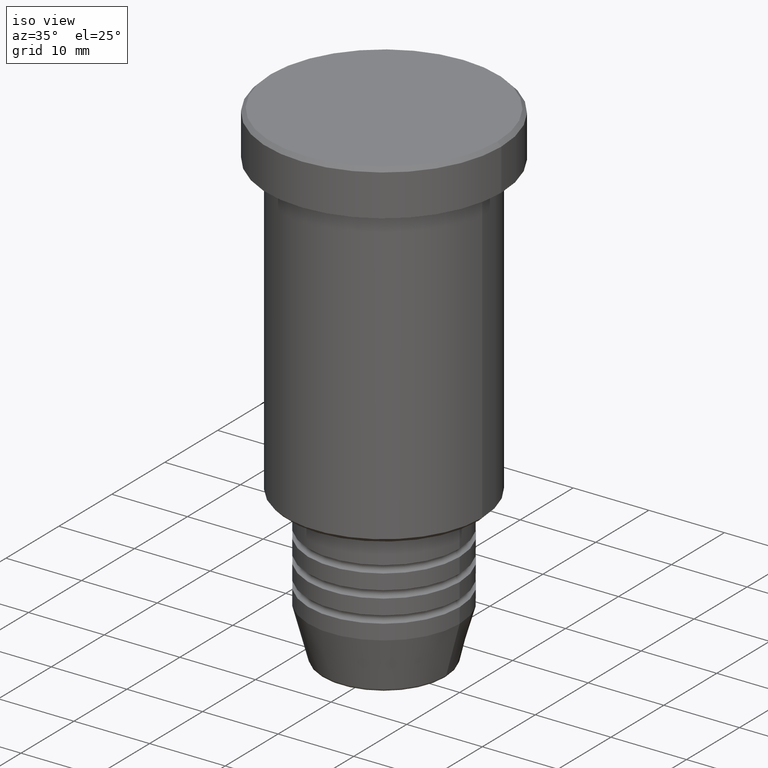
[diagram: clean part render]
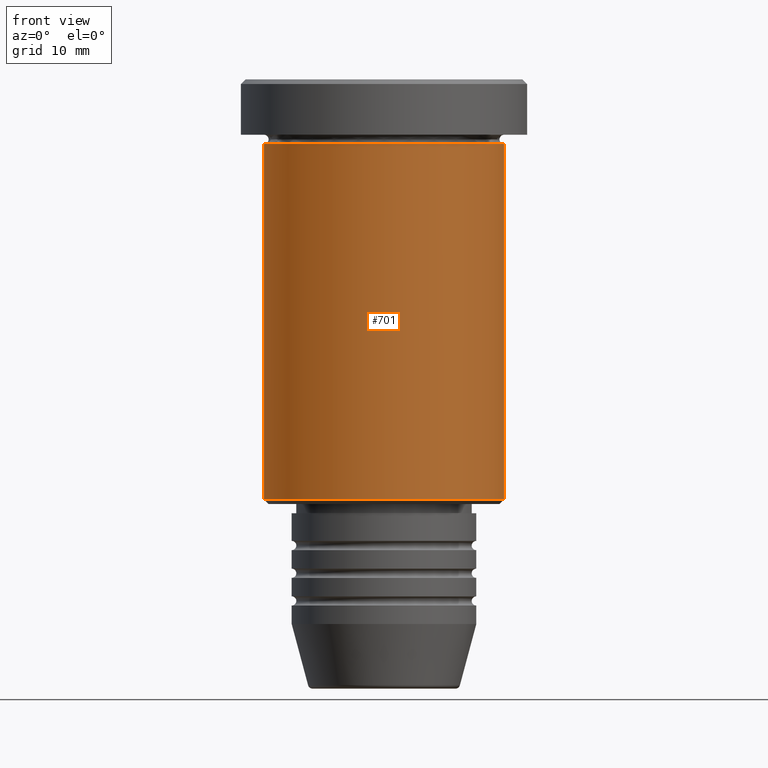
[diagram: tour spotlight — one face highlighted and labeled with its STEP entity id]
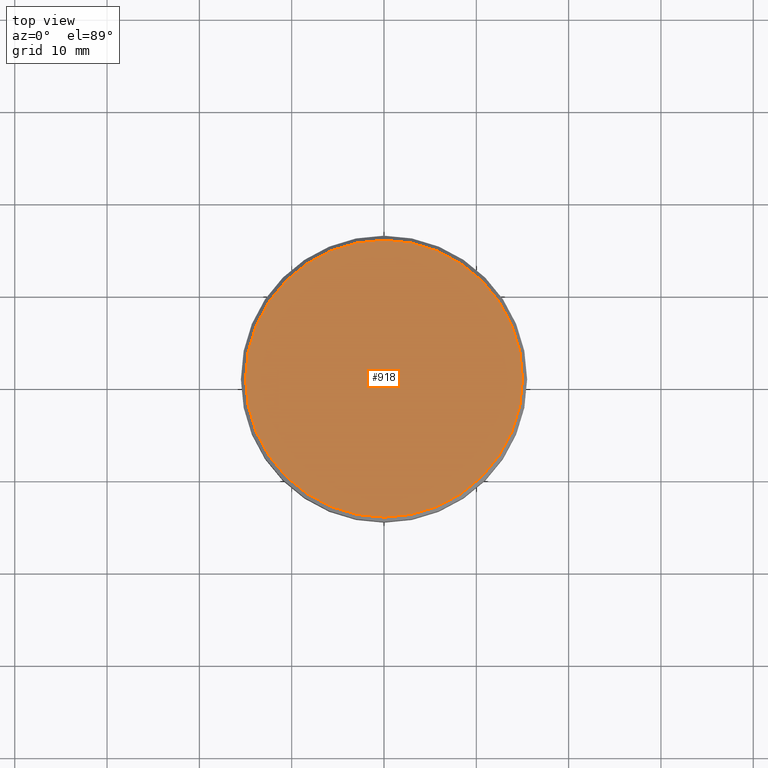
[diagram: tour spotlight — one face highlighted and labeled with its STEP entity id]
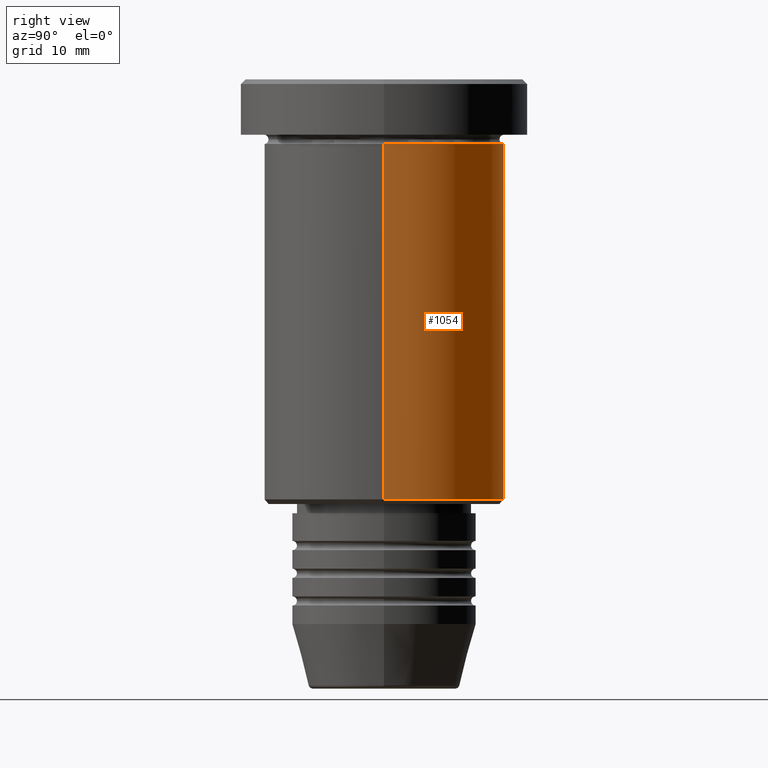
[diagram: tour spotlight — one face highlighted and labeled with its STEP entity id]
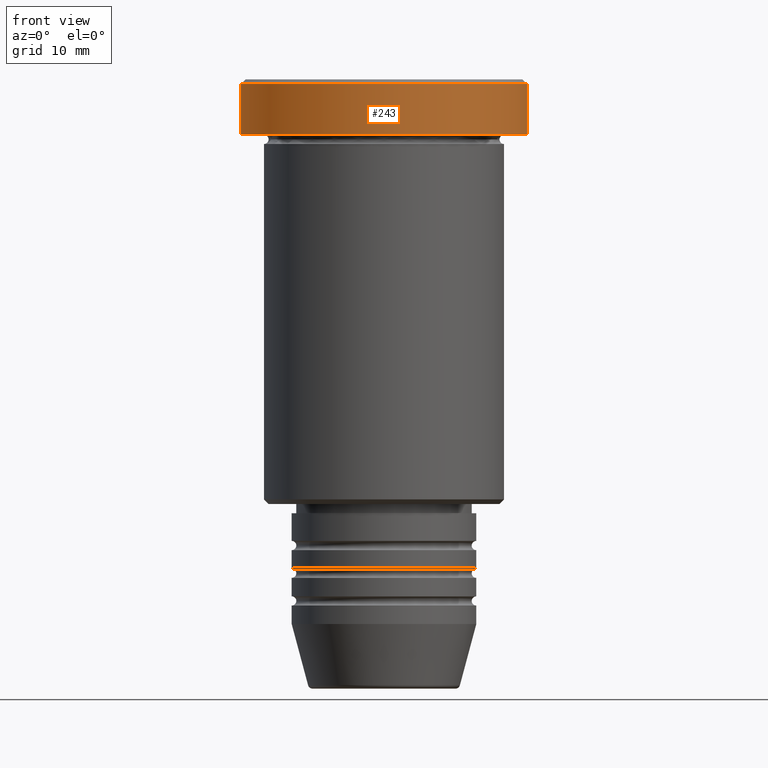
[diagram: tour spotlight — one face highlighted and labeled with its STEP entity id]
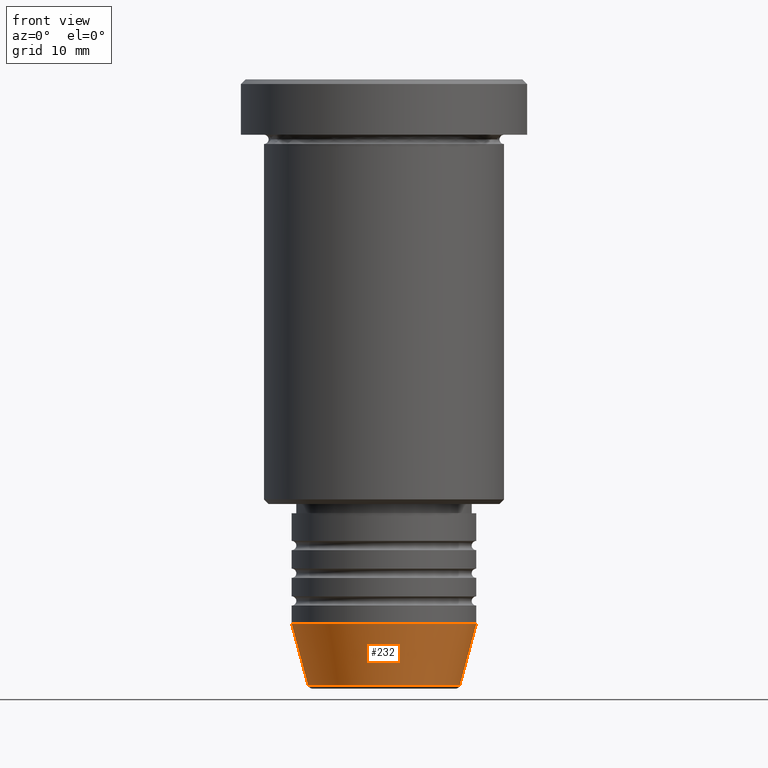
[diagram: tour spotlight — one face highlighted and labeled with its STEP entity id]
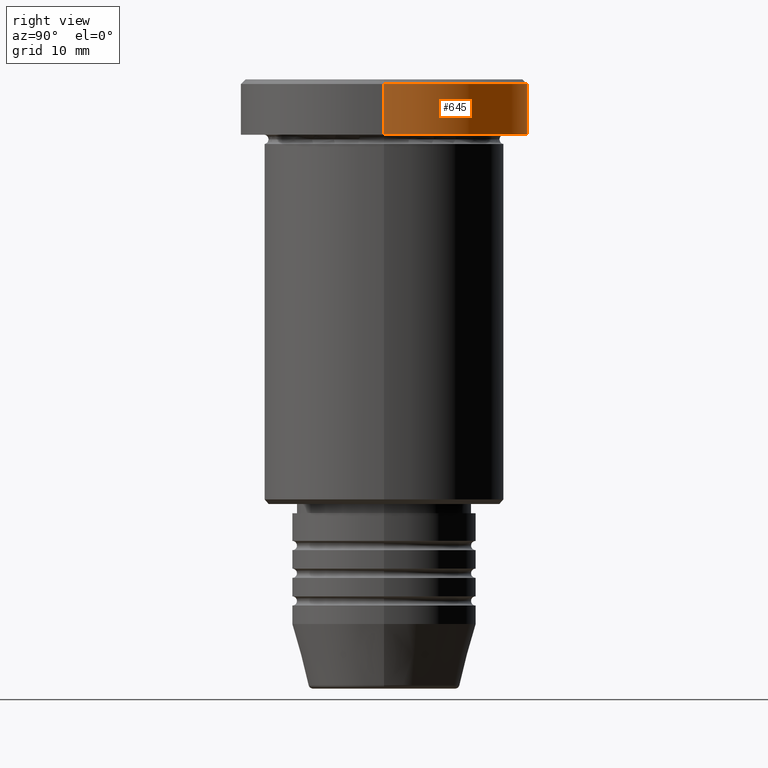
[diagram: tour spotlight — one face highlighted and labeled with its STEP entity id]
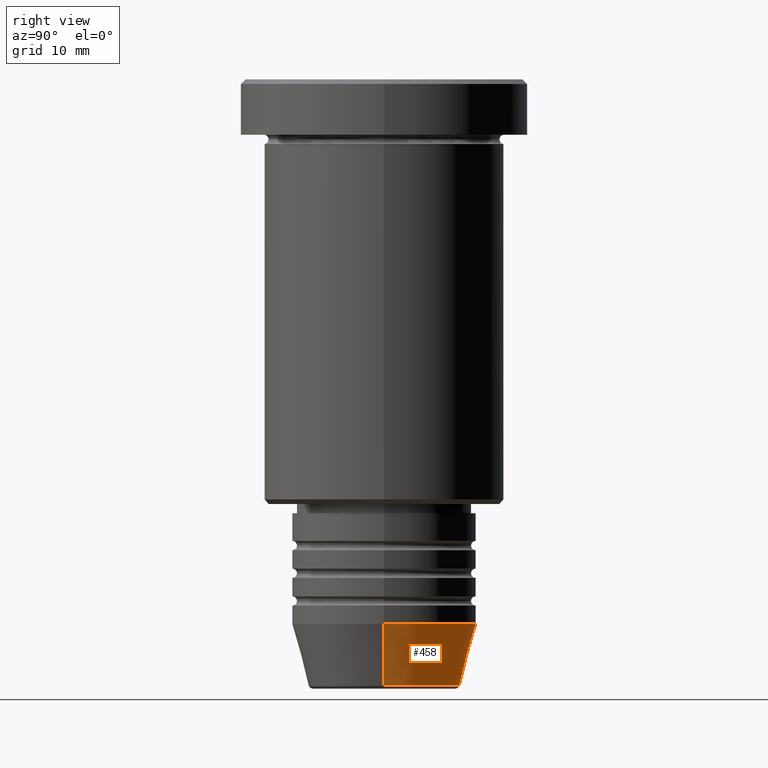
[diagram: tour spotlight — one face highlighted and labeled with its STEP entity id]
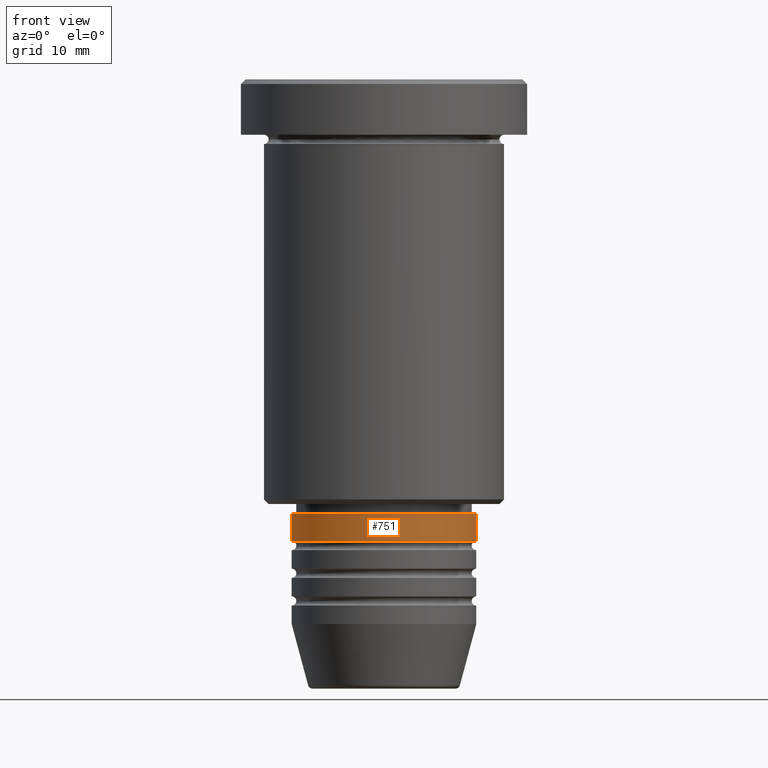
[diagram: tour spotlight — one face highlighted and labeled with its STEP entity id]
A machine part: a face-by-face anatomy tour. The part has 43 B-rep faces; the first image is the clean iso view, then the 8 largest visible faces are spotlighted one at a time (largest first), each with its STEP entity span.

Face 1 — front view, entity #701. In plain terms, the highlighted cylindrical surface (partial cylindrical patch) has radius 13 mm, axis along (-0, -0, 1).
Definition (entity closure, byte-faithful):
#28 = DIRECTION ( 'NONE',  ( 1.000000000000000000, 0.000000000000000000, 0.000000000000000000 ) ) ;
#62 = CARTESIAN_POINT ( 'NONE',  ( 0.000000000000000000, 0.000000000000000000, -6.999999999999995559 ) ) ;
#96 = CARTESIAN_POINT ( 'NONE',  ( 13.00000000000000000, 0.000000000000000000, -6.999999999999995559 ) ) ;
#122 = DIRECTION ( 'NONE',  ( -0.000000000000000000, -0.000000000000000000, 1.000000000000000000 ) ) ;
#150 = VECTOR ( 'NONE', #679, 1000.000000000000000 ) ;
#182 = EDGE_CURVE ( 'NONE', #1121, #1166, #377, .T. ) ;
#203 = ORIENTED_EDGE ( 'NONE', *, *, #182, .T. ) ;
#246 = AXIS2_PLACEMENT_3D ( 'NONE', #502, #969, #702 ) ;
#323 = AXIS2_PLACEMENT_3D ( 'NONE', #941, #468, #28 ) ;
#325 = EDGE_CURVE ( 'NONE', #1094, #699, #961, .T. ) ;
#338 = ORIENTED_EDGE ( 'NONE', *, *, #325, .F. ) ;
#346 = CARTESIAN_POINT ( 'NONE',  ( 13.00000000000000000, 0.000000000000000000, -45.50000000000000000 ) ) ;
#377 = CIRCLE ( 'NONE', #246, 13.00000000000000000 ) ;
#413 = DIRECTION ( 'NONE',  ( -0.000000000000000000, -0.000000000000000000, 1.000000000000000000 ) ) ;
#468 = DIRECTION ( 'NONE',  ( -0.000000000000000000, -0.000000000000000000, 1.000000000000000000 ) ) ;
#472 = LINE ( 'NONE', #568, #150 ) ;
#489 = CYLINDRICAL_SURFACE ( 'NONE', #323, 13.00000000000000000 ) ;
#501 = EDGE_CURVE ( 'NONE', #1166, #699, #878, .T. ) ;
#502 = CARTESIAN_POINT ( 'NONE',  ( 0.000000000000000000, 0.000000000000000000, -45.50000000000000000 ) ) ;
#540 = ORIENTED_EDGE ( 'NONE', *, *, #501, .T. ) ;
#568 = CARTESIAN_POINT ( 'NONE',  ( -13.00000000000000000, 1.592040838891559095E-15, 0.000000000000000000 ) ) ;
#579 = CARTESIAN_POINT ( 'NONE',  ( -13.00000000000000000, 1.592040838891559095E-15, -45.50000000000000000 ) ) ;
#646 = EDGE_LOOP ( 'NONE', ( #1086, #203, #540, #338 ) ) ;
#679 = DIRECTION ( 'NONE',  ( -0.000000000000000000, -0.000000000000000000, 1.000000000000000000 ) ) ;
#699 = VERTEX_POINT ( 'NONE', #96 ) ;
#701 = ADVANCED_FACE ( 'NONE', ( #1111 ), #489, .T. ) ;
#702 = DIRECTION ( 'NONE',  ( -1.000000000000000000, 0.000000000000000000, 0.000000000000000000 ) ) ;
#781 = CARTESIAN_POINT ( 'NONE',  ( 13.00000000000000000, 0.000000000000000000, 0.000000000000000000 ) ) ;
#817 = EDGE_CURVE ( 'NONE', #1121, #1094, #472, .T. ) ;
#842 = AXIS2_PLACEMENT_3D ( 'NONE', #62, #413, #1082 ) ;
#878 = LINE ( 'NONE', #781, #1156 ) ;
#941 = CARTESIAN_POINT ( 'NONE',  ( 0.000000000000000000, 0.000000000000000000, 0.000000000000000000 ) ) ;
#951 = CARTESIAN_POINT ( 'NONE',  ( -13.00000000000000000, 1.592040838891559095E-15, -6.999999999999995559 ) ) ;
#961 = CIRCLE ( 'NONE', #842, 13.00000000000000000 ) ;
#969 = DIRECTION ( 'NONE',  ( -0.000000000000000000, -0.000000000000000000, 1.000000000000000000 ) ) ;
#1082 = DIRECTION ( 'NONE',  ( 1.000000000000000000, 0.000000000000000000, 0.000000000000000000 ) ) ;
#1086 = ORIENTED_EDGE ( 'NONE', *, *, #817, .F. ) ;
#1094 = VERTEX_POINT ( 'NONE', #951 ) ;
#1111 = FACE_OUTER_BOUND ( 'NONE', #646, .T. ) ;
#1121 = VERTEX_POINT ( 'NONE', #579 ) ;
#1156 = VECTOR ( 'NONE', #122, 1000.000000000000000 ) ;
#1166 = VERTEX_POINT ( 'NONE', #346 ) ;

Face 2 — top view, entity #918. In plain terms, the highlighted planar face has unit normal (0, -0, 1).
Definition (entity closure, byte-faithful):
#2 = FACE_OUTER_BOUND ( 'NONE', #992, .T. ) ;
#16 = DIRECTION ( 'NONE',  ( 0.000000000000000000, -0.000000000000000000, 1.000000000000000000 ) ) ;
#29 = AXIS2_PLACEMENT_3D ( 'NONE', #661, #16, #1041 ) ;
#204 = DIRECTION ( 'NONE',  ( 1.000000000000000000, 0.000000000000000000, 0.000000000000000000 ) ) ;
#212 = CARTESIAN_POINT ( 'NONE',  ( 0.000000000000000000, 0.000000000000000000, 0.000000000000000000 ) ) ;
#273 = EDGE_CURVE ( 'NONE', #791, #604, #668, .T. ) ;
#348 = PLANE ( 'NONE',  #29 ) ;
#386 = DIRECTION ( 'NONE',  ( 1.000000000000000000, 0.000000000000000000, 0.000000000000000000 ) ) ;
#397 = DIRECTION ( 'NONE',  ( -0.000000000000000000, -0.000000000000000000, 1.000000000000000000 ) ) ;
#526 = CIRCLE ( 'NONE', #1142, 14.99999999999999289 ) ;
#604 = VERTEX_POINT ( 'NONE', #830 ) ;
#657 = CARTESIAN_POINT ( 'NONE',  ( 14.99999999999999289, 1.867586368699713376E-15, 0.000000000000000000 ) ) ;
#661 = CARTESIAN_POINT ( 'NONE',  ( 0.000000000000000000, 0.000000000000000000, 0.000000000000000000 ) ) ;
#668 = CIRCLE ( 'NONE', #1056, 14.99999999999999289 ) ;
#704 = ORIENTED_EDGE ( 'NONE', *, *, #273, .T. ) ;
#778 = CARTESIAN_POINT ( 'NONE',  ( 0.000000000000000000, 0.000000000000000000, 0.000000000000000000 ) ) ;
#791 = VERTEX_POINT ( 'NONE', #657 ) ;
#830 = CARTESIAN_POINT ( 'NONE',  ( -14.99999999999999289, 0.000000000000000000, 0.000000000000000000 ) ) ;
#918 = ADVANCED_FACE ( 'NONE', ( #2 ), #348, .T. ) ;
#949 = EDGE_CURVE ( 'NONE', #604, #791, #526, .T. ) ;
#992 = EDGE_LOOP ( 'NONE', ( #1087, #704 ) ) ;
#1041 = DIRECTION ( 'NONE',  ( 1.000000000000000000, 0.000000000000000000, 0.000000000000000000 ) ) ;
#1050 = DIRECTION ( 'NONE',  ( -0.000000000000000000, -0.000000000000000000, 1.000000000000000000 ) ) ;
#1056 = AXIS2_PLACEMENT_3D ( 'NONE', #212, #397, #386 ) ;
#1087 = ORIENTED_EDGE ( 'NONE', *, *, #949, .T. ) ;
#1142 = AXIS2_PLACEMENT_3D ( 'NONE', #778, #1050, #204 ) ;

Face 3 — right view, entity #1054. In plain terms, the highlighted cylindrical surface (partial cylindrical patch) has radius 13 mm, axis along (-0, -0, 1).
Definition (entity closure, byte-faithful):
#19 = CARTESIAN_POINT ( 'NONE',  ( 0.000000000000000000, 0.000000000000000000, 0.000000000000000000 ) ) ;
#96 = CARTESIAN_POINT ( 'NONE',  ( 13.00000000000000000, 0.000000000000000000, -6.999999999999995559 ) ) ;
#103 = DIRECTION ( 'NONE',  ( 1.000000000000000000, 0.000000000000000000, 0.000000000000000000 ) ) ;
#108 = AXIS2_PLACEMENT_3D ( 'NONE', #920, #344, #832 ) ;
#122 = DIRECTION ( 'NONE',  ( -0.000000000000000000, -0.000000000000000000, 1.000000000000000000 ) ) ;
#150 = VECTOR ( 'NONE', #679, 1000.000000000000000 ) ;
#169 = DIRECTION ( 'NONE',  ( 1.000000000000000000, 0.000000000000000000, 0.000000000000000000 ) ) ;
#217 = EDGE_CURVE ( 'NONE', #1166, #1121, #707, .T. ) ;
#274 = CYLINDRICAL_SURFACE ( 'NONE', #1017, 13.00000000000000000 ) ;
#344 = DIRECTION ( 'NONE',  ( -0.000000000000000000, -0.000000000000000000, 1.000000000000000000 ) ) ;
#345 = ORIENTED_EDGE ( 'NONE', *, *, #501, .F. ) ;
#346 = CARTESIAN_POINT ( 'NONE',  ( 13.00000000000000000, 0.000000000000000000, -45.50000000000000000 ) ) ;
#472 = LINE ( 'NONE', #568, #150 ) ;
#493 = ORIENTED_EDGE ( 'NONE', *, *, #817, .T. ) ;
#501 = EDGE_CURVE ( 'NONE', #1166, #699, #878, .T. ) ;
#538 = ORIENTED_EDGE ( 'NONE', *, *, #217, .T. ) ;
#562 = EDGE_LOOP ( 'NONE', ( #538, #493, #768, #345 ) ) ;
#568 = CARTESIAN_POINT ( 'NONE',  ( -13.00000000000000000, 1.592040838891559095E-15, 0.000000000000000000 ) ) ;
#579 = CARTESIAN_POINT ( 'NONE',  ( -13.00000000000000000, 1.592040838891559095E-15, -45.50000000000000000 ) ) ;
#631 = AXIS2_PLACEMENT_3D ( 'NONE', #1161, #719, #169 ) ;
#679 = DIRECTION ( 'NONE',  ( -0.000000000000000000, -0.000000000000000000, 1.000000000000000000 ) ) ;
#699 = VERTEX_POINT ( 'NONE', #96 ) ;
#707 = CIRCLE ( 'NONE', #108, 13.00000000000000000 ) ;
#719 = DIRECTION ( 'NONE',  ( -0.000000000000000000, -0.000000000000000000, 1.000000000000000000 ) ) ;
#768 = ORIENTED_EDGE ( 'NONE', *, *, #957, .F. ) ;
#781 = CARTESIAN_POINT ( 'NONE',  ( 13.00000000000000000, 0.000000000000000000, 0.000000000000000000 ) ) ;
#817 = EDGE_CURVE ( 'NONE', #1121, #1094, #472, .T. ) ;
#832 = DIRECTION ( 'NONE',  ( -1.000000000000000000, 0.000000000000000000, 0.000000000000000000 ) ) ;
#847 = CIRCLE ( 'NONE', #631, 13.00000000000000000 ) ;
#878 = LINE ( 'NONE', #781, #1156 ) ;
#920 = CARTESIAN_POINT ( 'NONE',  ( 0.000000000000000000, 0.000000000000000000, -45.50000000000000000 ) ) ;
#951 = CARTESIAN_POINT ( 'NONE',  ( -13.00000000000000000, 1.592040838891559095E-15, -6.999999999999995559 ) ) ;
#957 = EDGE_CURVE ( 'NONE', #699, #1094, #847, .T. ) ;
#1017 = AXIS2_PLACEMENT_3D ( 'NONE', #19, #1136, #103 ) ;
#1054 = ADVANCED_FACE ( 'NONE', ( #1160 ), #274, .T. ) ;
#1094 = VERTEX_POINT ( 'NONE', #951 ) ;
#1121 = VERTEX_POINT ( 'NONE', #579 ) ;
#1136 = DIRECTION ( 'NONE',  ( -0.000000000000000000, -0.000000000000000000, 1.000000000000000000 ) ) ;
#1156 = VECTOR ( 'NONE', #122, 1000.000000000000000 ) ;
#1160 = FACE_OUTER_BOUND ( 'NONE', #562, .T. ) ;
#1161 = CARTESIAN_POINT ( 'NONE',  ( 0.000000000000000000, 0.000000000000000000, -6.999999999999995559 ) ) ;
#1166 = VERTEX_POINT ( 'NONE', #346 ) ;

Face 4 — front view, entity #243. In plain terms, the highlighted cylindrical surface (partial cylindrical patch) has radius 15.5 mm, axis along (-0, -0, 1).
Definition (entity closure, byte-faithful):
#69 = CARTESIAN_POINT ( 'NONE',  ( -15.50000000000000000, 1.898202538678397557E-15, -0.5000000000000057732 ) ) ;
#92 = EDGE_CURVE ( 'NONE', #582, #912, #681, .T. ) ;
#105 = CARTESIAN_POINT ( 'NONE',  ( 15.50000000000000000, 0.000000000000000000, 0.000000000000000000 ) ) ;
#191 = CARTESIAN_POINT ( 'NONE',  ( 0.000000000000000000, 0.000000000000000000, -0.5000000000000057732 ) ) ;
#194 = VECTOR ( 'NONE', #1028, 1000.000000000000000 ) ;
#207 = CYLINDRICAL_SURFACE ( 'NONE', #1119, 15.50000000000000000 ) ;
#234 = CARTESIAN_POINT ( 'NONE',  ( 15.50000000000000000, 0.000000000000000000, -0.5000000000000057732 ) ) ;
#243 = ADVANCED_FACE ( 'NONE', ( #498 ), #207, .T. ) ;
#256 = ORIENTED_EDGE ( 'NONE', *, *, #933, .T. ) ;
#336 = VERTEX_POINT ( 'NONE', #234 ) ;
#350 = LINE ( 'NONE', #105, #1038 ) ;
#395 = DIRECTION ( 'NONE',  ( -0.000000000000000000, -0.000000000000000000, 1.000000000000000000 ) ) ;
#440 = AXIS2_PLACEMENT_3D ( 'NONE', #191, #1115, #947 ) ;
#474 = DIRECTION ( 'NONE',  ( -0.000000000000000000, -0.000000000000000000, 1.000000000000000000 ) ) ;
#498 = FACE_OUTER_BOUND ( 'NONE', #500, .T. ) ;
#500 = EDGE_LOOP ( 'NONE', ( #1178, #665, #256, #1159 ) ) ;
#533 = EDGE_CURVE ( 'NONE', #582, #819, #895, .T. ) ;
#582 = VERTEX_POINT ( 'NONE', #1020 ) ;
#583 = CARTESIAN_POINT ( 'NONE',  ( -15.50000000000000000, 1.898202538678397557E-15, 0.000000000000000000 ) ) ;
#653 = CARTESIAN_POINT ( 'NONE',  ( 15.50000000000000000, 0.000000000000000000, -5.999999999999995559 ) ) ;
#665 = ORIENTED_EDGE ( 'NONE', *, *, #533, .T. ) ;
#681 = LINE ( 'NONE', #583, #194 ) ;
#685 = EDGE_CURVE ( 'NONE', #336, #912, #804, .T. ) ;
#703 = CARTESIAN_POINT ( 'NONE',  ( 0.000000000000000000, 0.000000000000000000, -5.999999999999995559 ) ) ;
#758 = CARTESIAN_POINT ( 'NONE',  ( 0.000000000000000000, 0.000000000000000000, 0.000000000000000000 ) ) ;
#786 = DIRECTION ( 'NONE',  ( 1.000000000000000000, 0.000000000000000000, 0.000000000000000000 ) ) ;
#804 = CIRCLE ( 'NONE', #440, 15.50000000000000000 ) ;
#819 = VERTEX_POINT ( 'NONE', #653 ) ;
#895 = CIRCLE ( 'NONE', #1141, 15.50000000000000000 ) ;
#912 = VERTEX_POINT ( 'NONE', #69 ) ;
#933 = EDGE_CURVE ( 'NONE', #819, #336, #350, .T. ) ;
#945 = DIRECTION ( 'NONE',  ( -0.000000000000000000, -0.000000000000000000, 1.000000000000000000 ) ) ;
#947 = DIRECTION ( 'NONE',  ( 1.000000000000000000, 0.000000000000000000, 0.000000000000000000 ) ) ;
#1020 = CARTESIAN_POINT ( 'NONE',  ( -15.50000000000000000, 1.898202538678397557E-15, -5.999999999999995559 ) ) ;
#1028 = DIRECTION ( 'NONE',  ( -0.000000000000000000, -0.000000000000000000, 1.000000000000000000 ) ) ;
#1038 = VECTOR ( 'NONE', #474, 1000.000000000000000 ) ;
#1053 = DIRECTION ( 'NONE',  ( 1.000000000000000000, 0.000000000000000000, 0.000000000000000000 ) ) ;
#1115 = DIRECTION ( 'NONE',  ( 0.000000000000000000, 0.000000000000000000, -1.000000000000000000 ) ) ;
#1119 = AXIS2_PLACEMENT_3D ( 'NONE', #758, #945, #1053 ) ;
#1141 = AXIS2_PLACEMENT_3D ( 'NONE', #703, #395, #786 ) ;
#1159 = ORIENTED_EDGE ( 'NONE', *, *, #685, .T. ) ;
#1178 = ORIENTED_EDGE ( 'NONE', *, *, #92, .F. ) ;

Face 5 — front view, entity #232. In plain terms, the highlighted conical surface has half-angle 15 deg.
Definition (entity closure, byte-faithful):
#100 = CARTESIAN_POINT ( 'NONE',  ( 0.000000000000000000, 0.000000000000000000, -59.00000000000000000 ) ) ;
#131 = AXIS2_PLACEMENT_3D ( 'NONE', #100, #596, #972 ) ;
#163 = ORIENTED_EDGE ( 'NONE', *, *, #637, .T. ) ;
#188 = VECTOR ( 'NONE', #215, 1000.000000000000000 ) ;
#199 = CARTESIAN_POINT ( 'NONE',  ( 10.00000000000000000, 0.000000000000000000, -59.00000000000000000 ) ) ;
#215 = DIRECTION ( 'NONE',  ( -0.2588190451025213501, 3.169619151431772337E-17, 0.9659258262890680902 ) ) ;
#232 = ADVANCED_FACE ( 'NONE', ( #686 ), #908, .T. ) ;
#282 = EDGE_CURVE ( 'NONE', #1044, #424, #692, .T. ) ;
#294 = EDGE_CURVE ( 'NONE', #636, #1092, #1033, .T. ) ;
#298 = DIRECTION ( 'NONE',  ( 1.000000000000000000, 0.000000000000000000, 0.000000000000000000 ) ) ;
#333 = AXIS2_PLACEMENT_3D ( 'NONE', #966, #573, #298 ) ;
#354 = VECTOR ( 'NONE', #659, 1000.000000000000000 ) ;
#378 = DIRECTION ( 'NONE',  ( -0.000000000000000000, -0.000000000000000000, 1.000000000000000000 ) ) ;
#408 = CARTESIAN_POINT ( 'NONE',  ( -10.00000000000000000, 1.224646799147353256E-15, -59.00000000000000000 ) ) ;
#419 = LINE ( 'NONE', #408, #188 ) ;
#424 = VERTEX_POINT ( 'NONE', #1052 ) ;
#467 = CARTESIAN_POINT ( 'NONE',  ( 8.223655072137187716, 0.000000000000000000, -65.62940952255127058 ) ) ;
#537 = EDGE_LOOP ( 'NONE', ( #1181, #931, #163, #680 ) ) ;
#573 = DIRECTION ( 'NONE',  ( -0.000000000000000000, -0.000000000000000000, 1.000000000000000000 ) ) ;
#584 = CARTESIAN_POINT ( 'NONE',  ( -8.223655072137187716, 1.115877042642911856E-15, -65.62940952255127058 ) ) ;
#596 = DIRECTION ( 'NONE',  ( -0.000000000000000000, -0.000000000000000000, 1.000000000000000000 ) ) ;
#636 = VERTEX_POINT ( 'NONE', #584 ) ;
#637 = EDGE_CURVE ( 'NONE', #1092, #424, #1029, .T. ) ;
#659 = DIRECTION ( 'NONE',  ( 0.2588190451025213501, 0.000000000000000000, 0.9659258262890680902 ) ) ;
#680 = ORIENTED_EDGE ( 'NONE', *, *, #282, .F. ) ;
#686 = FACE_OUTER_BOUND ( 'NONE', #537, .T. ) ;
#692 = CIRCLE ( 'NONE', #131, 10.00000000000000000 ) ;
#745 = EDGE_CURVE ( 'NONE', #636, #1044, #419, .T. ) ;
#789 = DIRECTION ( 'NONE',  ( 1.000000000000000000, 0.000000000000000000, 0.000000000000000000 ) ) ;
#807 = CARTESIAN_POINT ( 'NONE',  ( -10.00000000000000000, 1.224646799147353256E-15, -59.00000000000000000 ) ) ;
#860 = CARTESIAN_POINT ( 'NONE',  ( 0.000000000000000000, 0.000000000000000000, -65.62940952255127058 ) ) ;
#908 = CONICAL_SURFACE ( 'NONE', #333, 10.00000000000000000, 0.2617993877991500740 ) ;
#926 = AXIS2_PLACEMENT_3D ( 'NONE', #860, #378, #789 ) ;
#931 = ORIENTED_EDGE ( 'NONE', *, *, #294, .T. ) ;
#966 = CARTESIAN_POINT ( 'NONE',  ( 0.000000000000000000, 0.000000000000000000, -59.00000000000000000 ) ) ;
#972 = DIRECTION ( 'NONE',  ( 1.000000000000000000, 0.000000000000000000, 0.000000000000000000 ) ) ;
#1029 = LINE ( 'NONE', #199, #354 ) ;
#1033 = CIRCLE ( 'NONE', #926, 8.223655072137187716 ) ;
#1044 = VERTEX_POINT ( 'NONE', #807 ) ;
#1052 = CARTESIAN_POINT ( 'NONE',  ( 10.00000000000000000, 0.000000000000000000, -59.00000000000000000 ) ) ;
#1092 = VERTEX_POINT ( 'NONE', #467 ) ;
#1181 = ORIENTED_EDGE ( 'NONE', *, *, #745, .F. ) ;

Face 6 — right view, entity #645. In plain terms, the highlighted cylindrical surface (partial cylindrical patch) has radius 15.5 mm, axis along (-0, -0, 1).
Definition (entity closure, byte-faithful):
#14 = DIRECTION ( 'NONE',  ( -0.000000000000000000, -0.000000000000000000, 1.000000000000000000 ) ) ;
#69 = CARTESIAN_POINT ( 'NONE',  ( -15.50000000000000000, 1.898202538678397557E-15, -0.5000000000000057732 ) ) ;
#74 = AXIS2_PLACEMENT_3D ( 'NONE', #442, #831, #838 ) ;
#92 = EDGE_CURVE ( 'NONE', #582, #912, #681, .T. ) ;
#105 = CARTESIAN_POINT ( 'NONE',  ( 15.50000000000000000, 0.000000000000000000, 0.000000000000000000 ) ) ;
#194 = VECTOR ( 'NONE', #1028, 1000.000000000000000 ) ;
#234 = CARTESIAN_POINT ( 'NONE',  ( 15.50000000000000000, 0.000000000000000000, -0.5000000000000057732 ) ) ;
#279 = CARTESIAN_POINT ( 'NONE',  ( 0.000000000000000000, 0.000000000000000000, -0.5000000000000057732 ) ) ;
#309 = CIRCLE ( 'NONE', #74, 15.50000000000000000 ) ;
#332 = ORIENTED_EDGE ( 'NONE', *, *, #92, .T. ) ;
#336 = VERTEX_POINT ( 'NONE', #234 ) ;
#350 = LINE ( 'NONE', #105, #1038 ) ;
#417 = EDGE_CURVE ( 'NONE', #912, #336, #1104, .T. ) ;
#442 = CARTESIAN_POINT ( 'NONE',  ( 0.000000000000000000, 0.000000000000000000, -5.999999999999995559 ) ) ;
#474 = DIRECTION ( 'NONE',  ( -0.000000000000000000, -0.000000000000000000, 1.000000000000000000 ) ) ;
#475 = FACE_OUTER_BOUND ( 'NONE', #799, .T. ) ;
#563 = DIRECTION ( 'NONE',  ( 1.000000000000000000, 0.000000000000000000, 0.000000000000000000 ) ) ;
#582 = VERTEX_POINT ( 'NONE', #1020 ) ;
#583 = CARTESIAN_POINT ( 'NONE',  ( -15.50000000000000000, 1.898202538678397557E-15, 0.000000000000000000 ) ) ;
#587 = AXIS2_PLACEMENT_3D ( 'NONE', #279, #676, #948 ) ;
#645 = ADVANCED_FACE ( 'NONE', ( #475 ), #779, .T. ) ;
#652 = ORIENTED_EDGE ( 'NONE', *, *, #984, .T. ) ;
#653 = CARTESIAN_POINT ( 'NONE',  ( 15.50000000000000000, 0.000000000000000000, -5.999999999999995559 ) ) ;
#667 = CARTESIAN_POINT ( 'NONE',  ( 0.000000000000000000, 0.000000000000000000, 0.000000000000000000 ) ) ;
#676 = DIRECTION ( 'NONE',  ( 0.000000000000000000, 0.000000000000000000, -1.000000000000000000 ) ) ;
#681 = LINE ( 'NONE', #583, #194 ) ;
#693 = AXIS2_PLACEMENT_3D ( 'NONE', #667, #14, #563 ) ;
#779 = CYLINDRICAL_SURFACE ( 'NONE', #693, 15.50000000000000000 ) ;
#799 = EDGE_LOOP ( 'NONE', ( #652, #332, #921, #1095 ) ) ;
#819 = VERTEX_POINT ( 'NONE', #653 ) ;
#831 = DIRECTION ( 'NONE',  ( -0.000000000000000000, -0.000000000000000000, 1.000000000000000000 ) ) ;
#838 = DIRECTION ( 'NONE',  ( 1.000000000000000000, 0.000000000000000000, 0.000000000000000000 ) ) ;
#912 = VERTEX_POINT ( 'NONE', #69 ) ;
#921 = ORIENTED_EDGE ( 'NONE', *, *, #417, .T. ) ;
#933 = EDGE_CURVE ( 'NONE', #819, #336, #350, .T. ) ;
#948 = DIRECTION ( 'NONE',  ( 1.000000000000000000, 0.000000000000000000, 0.000000000000000000 ) ) ;
#984 = EDGE_CURVE ( 'NONE', #819, #582, #309, .T. ) ;
#1020 = CARTESIAN_POINT ( 'NONE',  ( -15.50000000000000000, 1.898202538678397557E-15, -5.999999999999995559 ) ) ;
#1028 = DIRECTION ( 'NONE',  ( -0.000000000000000000, -0.000000000000000000, 1.000000000000000000 ) ) ;
#1038 = VECTOR ( 'NONE', #474, 1000.000000000000000 ) ;
#1095 = ORIENTED_EDGE ( 'NONE', *, *, #933, .F. ) ;
#1104 = CIRCLE ( 'NONE', #587, 15.50000000000000000 ) ;

Face 7 — right view, entity #458. In plain terms, the highlighted conical surface has half-angle 15 deg.
Definition (entity closure, byte-faithful):
#49 = CIRCLE ( 'NONE', #1090, 8.223655072137187716 ) ;
#162 = EDGE_CURVE ( 'NONE', #424, #1044, #478, .T. ) ;
#188 = VECTOR ( 'NONE', #215, 1000.000000000000000 ) ;
#199 = CARTESIAN_POINT ( 'NONE',  ( 10.00000000000000000, 0.000000000000000000, -59.00000000000000000 ) ) ;
#208 = AXIS2_PLACEMENT_3D ( 'NONE', #1140, #1057, #897 ) ;
#215 = DIRECTION ( 'NONE',  ( -0.2588190451025213501, 3.169619151431772337E-17, 0.9659258262890680902 ) ) ;
#230 = CONICAL_SURFACE ( 'NONE', #928, 10.00000000000000000, 0.2617993877991500740 ) ;
#297 = FACE_OUTER_BOUND ( 'NONE', #826, .T. ) ;
#300 = CARTESIAN_POINT ( 'NONE',  ( 0.000000000000000000, 0.000000000000000000, -65.62940952255127058 ) ) ;
#308 = ORIENTED_EDGE ( 'NONE', *, *, #162, .F. ) ;
#312 = ORIENTED_EDGE ( 'NONE', *, *, #735, .T. ) ;
#354 = VECTOR ( 'NONE', #659, 1000.000000000000000 ) ;
#408 = CARTESIAN_POINT ( 'NONE',  ( -10.00000000000000000, 1.224646799147353256E-15, -59.00000000000000000 ) ) ;
#419 = LINE ( 'NONE', #408, #188 ) ;
#424 = VERTEX_POINT ( 'NONE', #1052 ) ;
#431 = ORIENTED_EDGE ( 'NONE', *, *, #745, .T. ) ;
#458 = ADVANCED_FACE ( 'NONE', ( #297 ), #230, .T. ) ;
#462 = DIRECTION ( 'NONE',  ( 1.000000000000000000, 0.000000000000000000, 0.000000000000000000 ) ) ;
#467 = CARTESIAN_POINT ( 'NONE',  ( 8.223655072137187716, 0.000000000000000000, -65.62940952255127058 ) ) ;
#478 = CIRCLE ( 'NONE', #208, 10.00000000000000000 ) ;
#577 = CARTESIAN_POINT ( 'NONE',  ( 0.000000000000000000, 0.000000000000000000, -59.00000000000000000 ) ) ;
#584 = CARTESIAN_POINT ( 'NONE',  ( -8.223655072137187716, 1.115877042642911856E-15, -65.62940952255127058 ) ) ;
#636 = VERTEX_POINT ( 'NONE', #584 ) ;
#637 = EDGE_CURVE ( 'NONE', #1092, #424, #1029, .T. ) ;
#659 = DIRECTION ( 'NONE',  ( 0.2588190451025213501, 0.000000000000000000, 0.9659258262890680902 ) ) ;
#684 = DIRECTION ( 'NONE',  ( 1.000000000000000000, 0.000000000000000000, 0.000000000000000000 ) ) ;
#735 = EDGE_CURVE ( 'NONE', #1092, #636, #49, .T. ) ;
#745 = EDGE_CURVE ( 'NONE', #636, #1044, #419, .T. ) ;
#807 = CARTESIAN_POINT ( 'NONE',  ( -10.00000000000000000, 1.224646799147353256E-15, -59.00000000000000000 ) ) ;
#826 = EDGE_LOOP ( 'NONE', ( #312, #431, #308, #1144 ) ) ;
#897 = DIRECTION ( 'NONE',  ( 1.000000000000000000, 0.000000000000000000, 0.000000000000000000 ) ) ;
#928 = AXIS2_PLACEMENT_3D ( 'NONE', #577, #1117, #684 ) ;
#1029 = LINE ( 'NONE', #199, #354 ) ;
#1044 = VERTEX_POINT ( 'NONE', #807 ) ;
#1052 = CARTESIAN_POINT ( 'NONE',  ( 10.00000000000000000, 0.000000000000000000, -59.00000000000000000 ) ) ;
#1057 = DIRECTION ( 'NONE',  ( -0.000000000000000000, -0.000000000000000000, 1.000000000000000000 ) ) ;
#1058 = DIRECTION ( 'NONE',  ( -0.000000000000000000, -0.000000000000000000, 1.000000000000000000 ) ) ;
#1090 = AXIS2_PLACEMENT_3D ( 'NONE', #300, #1058, #462 ) ;
#1092 = VERTEX_POINT ( 'NONE', #467 ) ;
#1117 = DIRECTION ( 'NONE',  ( -0.000000000000000000, -0.000000000000000000, 1.000000000000000000 ) ) ;
#1140 = CARTESIAN_POINT ( 'NONE',  ( 0.000000000000000000, 0.000000000000000000, -59.00000000000000000 ) ) ;
#1144 = ORIENTED_EDGE ( 'NONE', *, *, #637, .F. ) ;

Face 8 — front view, entity #751. In plain terms, the highlighted cylindrical surface (partial cylindrical patch) has radius 10 mm, axis along (-0, -0, 1).
Definition (entity closure, byte-faithful):
#15 = CARTESIAN_POINT ( 'NONE',  ( 0.000000000000000000, 0.000000000000000000, -47.00000000000000000 ) ) ;
#20 = CARTESIAN_POINT ( 'NONE',  ( 0.000000000000000000, 0.000000000000000000, -49.99999999999997158 ) ) ;
#75 = EDGE_CURVE ( 'NONE', #632, #227, #385, .T. ) ;
#167 = CIRCLE ( 'NONE', #269, 10.00000000000000000 ) ;
#202 = LINE ( 'NONE', #1108, #1077 ) ;
#227 = VERTEX_POINT ( 'NONE', #491 ) ;
#237 = ORIENTED_EDGE ( 'NONE', *, *, #75, .F. ) ;
#269 = AXIS2_PLACEMENT_3D ( 'NONE', #20, #379, #1106 ) ;
#303 = VECTOR ( 'NONE', #520, 1000.000000000000000 ) ;
#322 = CARTESIAN_POINT ( 'NONE',  ( -10.00000000000000000, 1.224646799147353256E-15, -49.99999999999997158 ) ) ;
#379 = DIRECTION ( 'NONE',  ( -0.000000000000000000, -0.000000000000000000, 1.000000000000000000 ) ) ;
#385 = CIRCLE ( 'NONE', #1149, 10.00000000000000000 ) ;
#402 = AXIS2_PLACEMENT_3D ( 'NONE', #913, #1001, #436 ) ;
#403 = FACE_OUTER_BOUND ( 'NONE', #967, .T. ) ;
#436 = DIRECTION ( 'NONE',  ( 1.000000000000000000, 0.000000000000000000, 0.000000000000000000 ) ) ;
#482 = LINE ( 'NONE', #795, #303 ) ;
#491 = CARTESIAN_POINT ( 'NONE',  ( 10.00000000000000000, 0.000000000000000000, -47.00000000000000000 ) ) ;
#520 = DIRECTION ( 'NONE',  ( -0.000000000000000000, -0.000000000000000000, 1.000000000000000000 ) ) ;
#572 = DIRECTION ( 'NONE',  ( -0.000000000000000000, -0.000000000000000000, 1.000000000000000000 ) ) ;
#632 = VERTEX_POINT ( 'NONE', #857 ) ;
#724 = VERTEX_POINT ( 'NONE', #761 ) ;
#751 = ADVANCED_FACE ( 'NONE', ( #403 ), #793, .T. ) ;
#761 = CARTESIAN_POINT ( 'NONE',  ( 10.00000000000000000, 0.000000000000000000, -49.99999999999997158 ) ) ;
#793 = CYLINDRICAL_SURFACE ( 'NONE', #402, 10.00000000000000000 ) ;
#795 = CARTESIAN_POINT ( 'NONE',  ( 10.00000000000000000, 0.000000000000000000, 0.000000000000000000 ) ) ;
#824 = EDGE_CURVE ( 'NONE', #1072, #632, #202, .T. ) ;
#857 = CARTESIAN_POINT ( 'NONE',  ( -10.00000000000000000, 1.224646799147353256E-15, -47.00000000000000000 ) ) ;
#899 = ORIENTED_EDGE ( 'NONE', *, *, #1128, .T. ) ;
#913 = CARTESIAN_POINT ( 'NONE',  ( 0.000000000000000000, 0.000000000000000000, 0.000000000000000000 ) ) ;
#929 = ORIENTED_EDGE ( 'NONE', *, *, #824, .F. ) ;
#959 = DIRECTION ( 'NONE',  ( -0.000000000000000000, -0.000000000000000000, 1.000000000000000000 ) ) ;
#967 = EDGE_LOOP ( 'NONE', ( #929, #1035, #899, #237 ) ) ;
#1001 = DIRECTION ( 'NONE',  ( -0.000000000000000000, -0.000000000000000000, 1.000000000000000000 ) ) ;
#1009 = DIRECTION ( 'NONE',  ( 1.000000000000000000, 0.000000000000000000, 0.000000000000000000 ) ) ;
#1035 = ORIENTED_EDGE ( 'NONE', *, *, #1113, .T. ) ;
#1072 = VERTEX_POINT ( 'NONE', #322 ) ;
#1077 = VECTOR ( 'NONE', #959, 1000.000000000000000 ) ;
#1106 = DIRECTION ( 'NONE',  ( 1.000000000000000000, 0.000000000000000000, 0.000000000000000000 ) ) ;
#1108 = CARTESIAN_POINT ( 'NONE',  ( -10.00000000000000000, 1.224646799147353256E-15, 0.000000000000000000 ) ) ;
#1113 = EDGE_CURVE ( 'NONE', #1072, #724, #167, .T. ) ;
#1128 = EDGE_CURVE ( 'NONE', #724, #227, #482, .T. ) ;
#1149 = AXIS2_PLACEMENT_3D ( 'NONE', #15, #572, #1009 ) ;